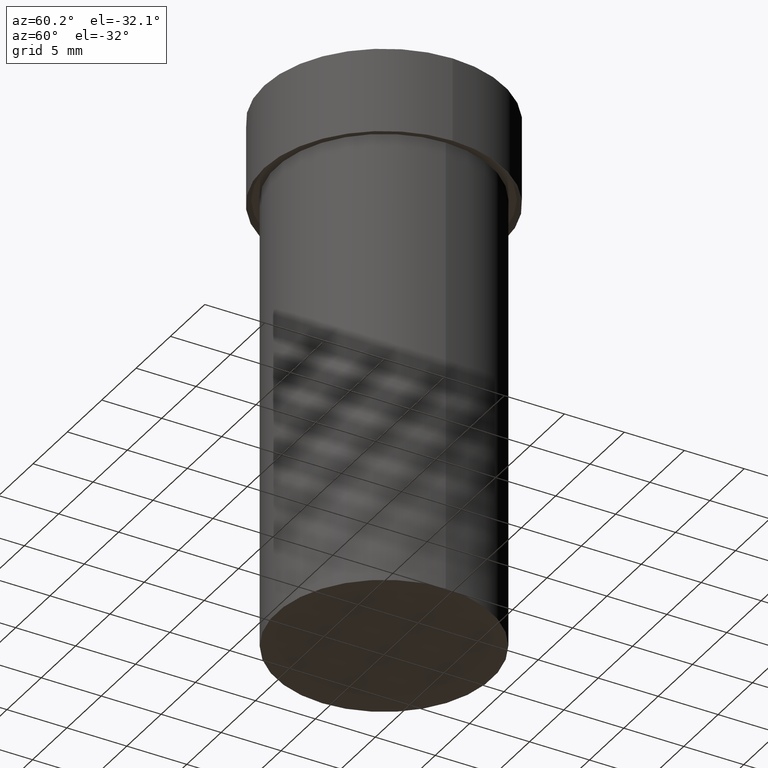
[diagram: clean part render]
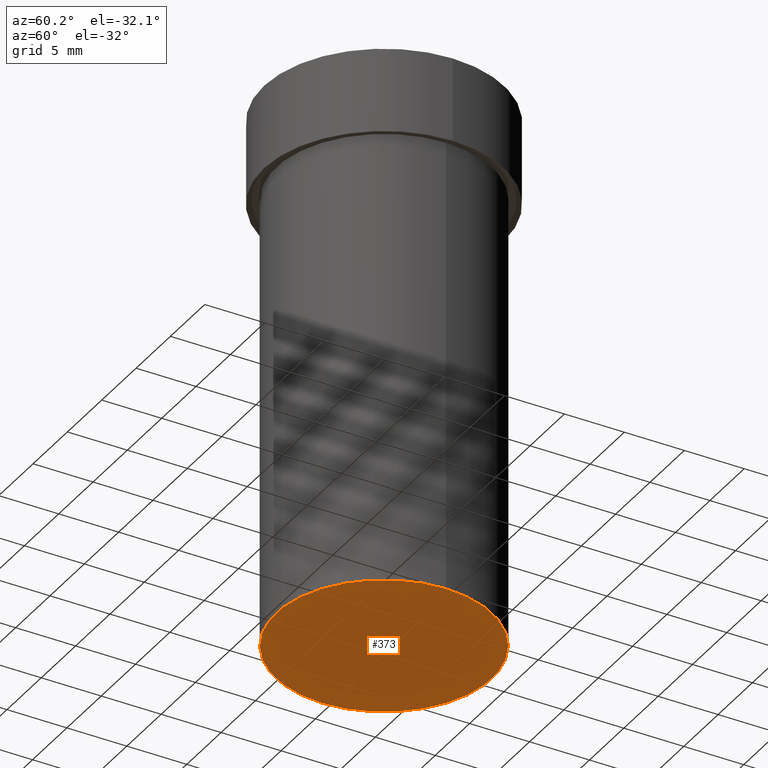
[diagram: same view with one face highlighted and labeled with its STEP entity id]
A machine part, auxiliary view. The second image highlights one B-rep face of the part: STEP entity #373.
In plain terms, the highlighted planar face has unit normal (0, -0, -1).
Its self-contained STEP definition (entity closure, byte-faithful):
#12 = EDGE_CURVE ( 'NONE', #397, #268, #452, .T. ) ;
#14 = AXIS2_PLACEMENT_3D ( 'NONE', #458, #419, #101 ) ;
#68 = ORIENTED_EDGE ( 'NONE', *, *, #12, .T. ) ;
#72 = CARTESIAN_POINT ( 'NONE',  ( 3.668203209277704895E-29, -5.237222008264718177E-15, -1.500000000000000222 ) ) ;
#87 = DIRECTION ( 'NONE',  ( -1.000000000000000000, 6.982962677686265922E-15, -4.876176775795935793E-29 ) ) ;
#93 = CARTESIAN_POINT ( 'NONE',  ( 0.3543499999999999983, -4.919047067569968280E-15, -1.500000000000000222 ) ) ;
#101 = DIRECTION ( 'NONE',  ( -1.000000000000000000, 6.982962677686266711E-15, 0.000000000000000000 ) ) ;
#157 = ORIENTED_EDGE ( 'NONE', *, *, #324, .T. ) ;
#161 = CIRCLE ( 'NONE', #414, 0.3543499999999999983 ) ;
#176 = CARTESIAN_POINT ( 'NONE',  ( -0.3543499999999999983, -2.762809183426589877E-15, -1.500000000000000222 ) ) ;
#201 = DIRECTION ( 'NONE',  ( 2.445468806185136597E-29, -3.491481338843145583E-15, -1.000000000000000000 ) ) ;
#220 = AXIS2_PLACEMENT_3D ( 'NONE', #366, #449, #87 ) ;
#268 = VERTEX_POINT ( 'NONE', #176 ) ;
#291 = EDGE_LOOP ( 'NONE', ( #157, #68 ) ) ;
#324 = EDGE_CURVE ( 'NONE', #268, #397, #161, .T. ) ;
#330 = FACE_OUTER_BOUND ( 'NONE', #291, .T. ) ;
#366 = CARTESIAN_POINT ( 'NONE',  ( 3.576687321579069994E-29, -5.368277968210015545E-15, -1.500000000000000222 ) ) ;
#373 = ADVANCED_FACE ( 'NONE', ( #330 ), #406, .T. ) ;
#388 = DIRECTION ( 'NONE',  ( -1.000000000000000000, 6.982962677686266711E-15, 0.000000000000000000 ) ) ;
#397 = VERTEX_POINT ( 'NONE', #93 ) ;
#406 = PLANE ( 'NONE',  #220 ) ;
#414 = AXIS2_PLACEMENT_3D ( 'NONE', #72, #201, #388 ) ;
#419 = DIRECTION ( 'NONE',  ( 2.445468806185136597E-29, -3.491481338843145583E-15, -1.000000000000000000 ) ) ;
#449 = DIRECTION ( 'NONE',  ( 2.438088387897960049E-29, -3.491481338843145188E-15, -1.000000000000000000 ) ) ;
#452 = CIRCLE ( 'NONE', #14, 0.3543499999999999983 ) ;
#458 = CARTESIAN_POINT ( 'NONE',  ( 3.668203209277704895E-29, -5.237222008264718177E-15, -1.500000000000000222 ) ) ;